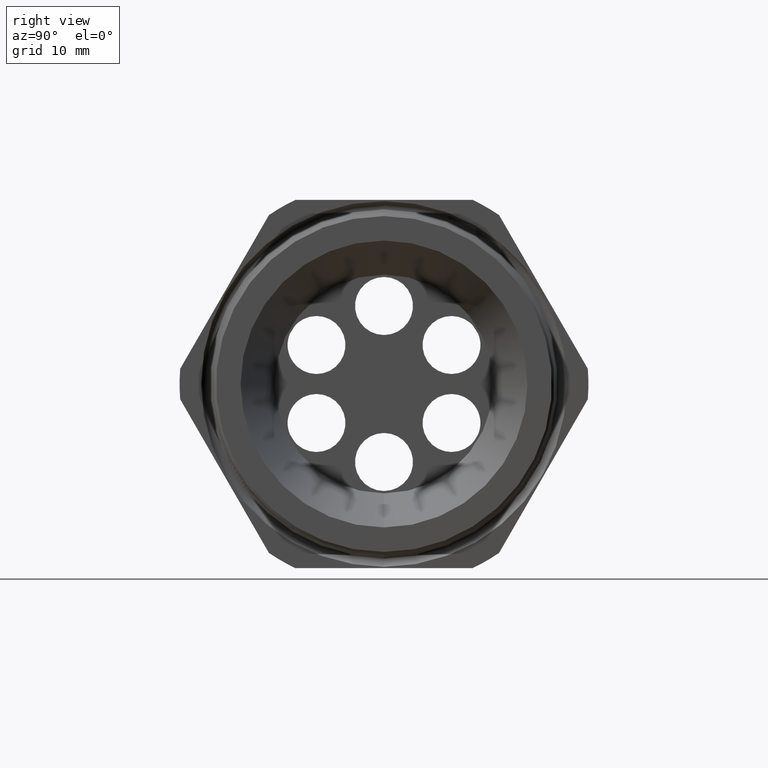
[diagram: clean part render]
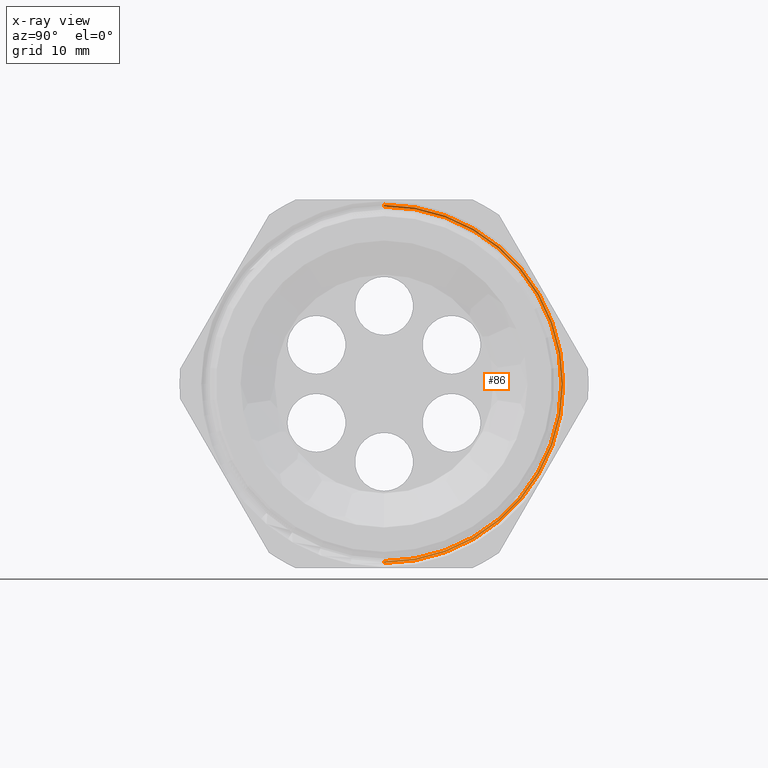
[diagram: x-ray — body ghosted, one internal face saturated and labeled with its STEP entity id]
A machine part, right view, then the same camera in x-ray: the body is ghosted and one INTERNAL B-rep face — a face not visible from any outside direction — is saturated and labeled: STEP entity #86.
In plain terms, the highlighted conical surface has half-angle 58 deg.
Its self-contained STEP definition (entity closure, byte-faithful):
#52 = VERTEX_POINT ( 'NONE', #1648 ) ;
#53 = EDGE_CURVE ( 'NONE', #58, #52, #1646, .T. ) ;
#54 = ORIENTED_EDGE ( 'NONE', *, *, #53, .T. ) ;
#55 = ORIENTED_EDGE ( 'NONE', *, *, #59, .T. ) ;
#56 = EDGE_LOOP ( 'NONE', ( #54, #55, #61, #8156 ) ) ;
#57 = EDGE_CURVE ( 'NONE', #60, #8157, #1704, .T. ) ;
#58 = VERTEX_POINT ( 'NONE', #1700 ) ;
#59 = EDGE_CURVE ( 'NONE', #52, #60, #1699, .T. ) ;
#60 = VERTEX_POINT ( 'NONE', #1695 ) ;
#61 = ORIENTED_EDGE ( 'NONE', *, *, #57, .T. ) ;
#86 = ADVANCED_FACE ( 'NONE', ( #1714 ), #1709, .T. ) ;
#129 = EDGE_CURVE ( 'NONE', #58, #8157, #1838, .T. ) ;
#1646 = CIRCLE ( 'NONE', #1708, 0.7945114984791280500 ) ;
#1647 = CARTESIAN_POINT ( 'NONE',  ( -0.8217154009518389300, 0.0000000000000000000, 0.0000000000000000000 ) ) ;
#1648 = CARTESIAN_POINT ( 'NONE',  ( -0.8267624839723553000, 0.0000000000000000000, 0.7945114984791280500 ) ) ;
#1695 = CARTESIAN_POINT ( 'NONE',  ( -0.8217154009518389300, 0.0000000000000000000, 0.8025885197077984300 ) ) ;
#1696 = DIRECTION ( 'NONE',  ( 0.5299192642331851400, 1.038559386480989100E-016, 0.8480480961564383900 ) ) ;
#1697 = VECTOR ( 'NONE', #1696, 39.37007874015748100 ) ;
#1698 = CARTESIAN_POINT ( 'NONE',  ( -0.8267624839723553000, 9.729959634982312200E-017, 0.7945114984791280500 ) ) ;
#1699 = LINE ( 'NONE', #1698, #1697 ) ;
#1700 = CARTESIAN_POINT ( 'NONE',  ( -0.8267624839723553000, 9.781452436864900900E-017, -0.7945114984791280500 ) ) ;
#1701 = DIRECTION ( 'NONE',  ( 0.0000000000000000000, 0.0000000000000000000, -1.000000000000000000 ) ) ;
#1702 = DIRECTION ( 'NONE',  ( -1.000000000000000000, 0.0000000000000000000, 0.0000000000000000000 ) ) ;
#1703 = AXIS2_PLACEMENT_3D ( 'NONE', #1647, #1702, #1701 ) ;
#1704 = CIRCLE ( 'NONE', #1703, 0.8025885197077984300 ) ;
#1705 = DIRECTION ( 'NONE',  ( 0.0000000000000000000, 0.0000000000000000000, -1.000000000000000000 ) ) ;
#1706 = DIRECTION ( 'NONE',  ( 1.000000000000000000, 0.0000000000000000000, 0.0000000000000000000 ) ) ;
#1707 = CARTESIAN_POINT ( 'NONE',  ( -0.8267624839723553000, 0.0000000000000000000, 0.0000000000000000000 ) ) ;
#1708 = AXIS2_PLACEMENT_3D ( 'NONE', #1707, #1706, #1705 ) ;
#1709 = CONICAL_SURFACE ( 'NONE', #1772, 0.7945114984791280500, 1.012290966156734500 ) ;
#1714 = FACE_OUTER_BOUND ( 'NONE', #56, .T. ) ;
#1769 = DIRECTION ( 'NONE',  ( 0.0000000000000000000, 0.0000000000000000000, -1.000000000000000000 ) ) ;
#1770 = DIRECTION ( 'NONE',  ( 1.000000000000000000, 0.0000000000000000000, 0.0000000000000000000 ) ) ;
#1771 = CARTESIAN_POINT ( 'NONE',  ( -0.8267624839723553000, 0.0000000000000000000, 0.0000000000000000000 ) ) ;
#1772 = AXIS2_PLACEMENT_3D ( 'NONE', #1771, #1770, #1769 ) ;
#1835 = DIRECTION ( 'NONE',  ( 0.5299192642331851400, 0.0000000000000000000, -0.8480480961564383900 ) ) ;
#1836 = VECTOR ( 'NONE', #1835, 39.37007874015748100 ) ;
#1837 = CARTESIAN_POINT ( 'NONE',  ( -0.8267624839723553000, 0.0000000000000000000, -0.7945114984791280500 ) ) ;
#1838 = LINE ( 'NONE', #1837, #1836 ) ;
#6560 = CARTESIAN_POINT ( 'NONE',  ( -0.8217154009518389300, 9.828874616925677800E-017, -0.8025885197077984300 ) ) ;
#8156 = ORIENTED_EDGE ( 'NONE', *, *, #129, .F. ) ;
#8157 = VERTEX_POINT ( 'NONE', #6560 ) ;